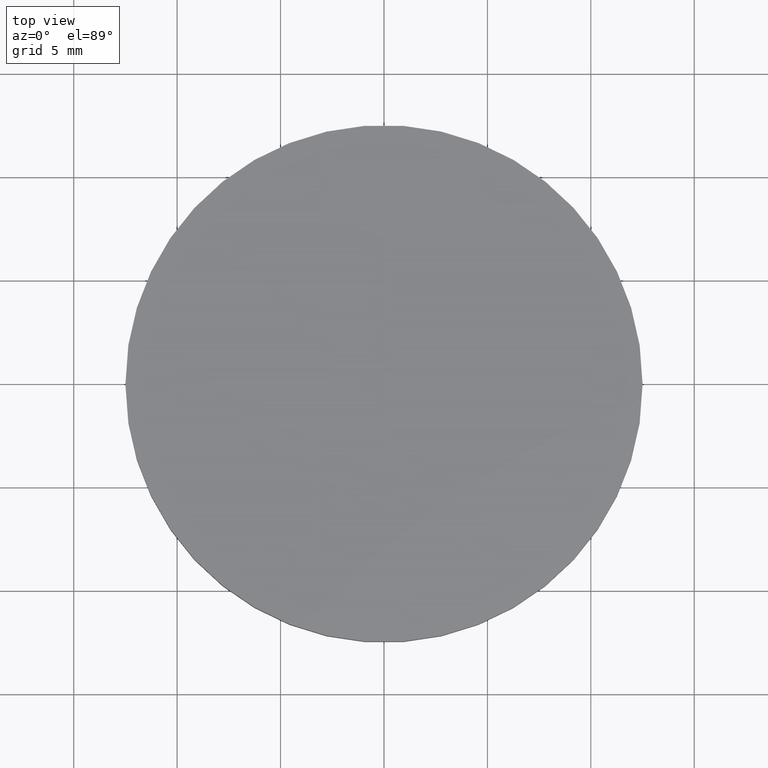
[diagram: clean part render]
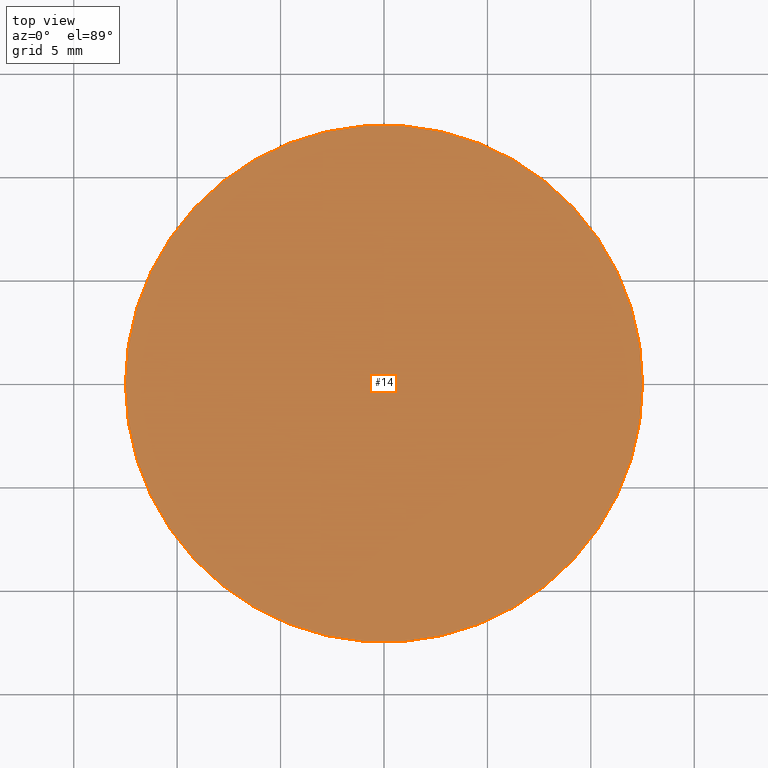
[diagram: same view with one face highlighted and labeled with its STEP entity id]
A machine part, top view. The second image highlights one B-rep face of the part: STEP entity #14.
In plain terms, the highlighted planar face has unit normal (0, 0, 1).
Its self-contained STEP definition (entity closure, byte-faithful):
#7 = EDGE_CURVE ( 'NONE', #50, #30, #58, .T. ) ;
#13 = DIRECTION ( 'NONE',  ( 1.000000000000000000, 0.0000000000000000000, 0.0000000000000000000 ) ) ;
#14 = ADVANCED_FACE ( 'NONE', ( #55 ), #32, .T. ) ;
#16 = CARTESIAN_POINT ( 'NONE',  ( -12.50000000000000000, 0.0000000000000000000, 2.000000000000000000 ) ) ;
#27 = AXIS2_PLACEMENT_3D ( 'NONE', #57, #101, #40 ) ;
#28 = CARTESIAN_POINT ( 'NONE',  ( 0.0000000000000000000, 0.0000000000000000000, 2.000000000000000000 ) ) ;
#30 = VERTEX_POINT ( 'NONE', #16 ) ;
#31 = DIRECTION ( 'NONE',  ( 1.000000000000000000, 0.0000000000000000000, -0.0000000000000000000 ) ) ;
#32 = PLANE ( 'NONE',  #41 ) ;
#35 = EDGE_LOOP ( 'NONE', ( #139, #132 ) ) ;
#40 = DIRECTION ( 'NONE',  ( 1.000000000000000000, 0.0000000000000000000, 0.0000000000000000000 ) ) ;
#41 = AXIS2_PLACEMENT_3D ( 'NONE', #129, #99, #31 ) ;
#50 = VERTEX_POINT ( 'NONE', #127 ) ;
#55 = FACE_OUTER_BOUND ( 'NONE', #35, .T. ) ;
#57 = CARTESIAN_POINT ( 'NONE',  ( 0.0000000000000000000, 0.0000000000000000000, 2.000000000000000000 ) ) ;
#58 = CIRCLE ( 'NONE', #27, 12.50000000000000000 ) ;
#71 = CIRCLE ( 'NONE', #134, 12.50000000000000000 ) ;
#86 = DIRECTION ( 'NONE',  ( 0.0000000000000000000, 0.0000000000000000000, 1.000000000000000000 ) ) ;
#99 = DIRECTION ( 'NONE',  ( 0.0000000000000000000, 0.0000000000000000000, 1.000000000000000000 ) ) ;
#101 = DIRECTION ( 'NONE',  ( 0.0000000000000000000, 0.0000000000000000000, 1.000000000000000000 ) ) ;
#107 = EDGE_CURVE ( 'NONE', #30, #50, #71, .T. ) ;
#127 = CARTESIAN_POINT ( 'NONE',  ( 12.50000000000000000, 1.530808498934191500E-015, 2.000000000000000000 ) ) ;
#129 = CARTESIAN_POINT ( 'NONE',  ( 0.0000000000000000000, 0.0000000000000000000, 2.000000000000000000 ) ) ;
#132 = ORIENTED_EDGE ( 'NONE', *, *, #7, .T. ) ;
#134 = AXIS2_PLACEMENT_3D ( 'NONE', #28, #86, #13 ) ;
#139 = ORIENTED_EDGE ( 'NONE', *, *, #107, .T. ) ;